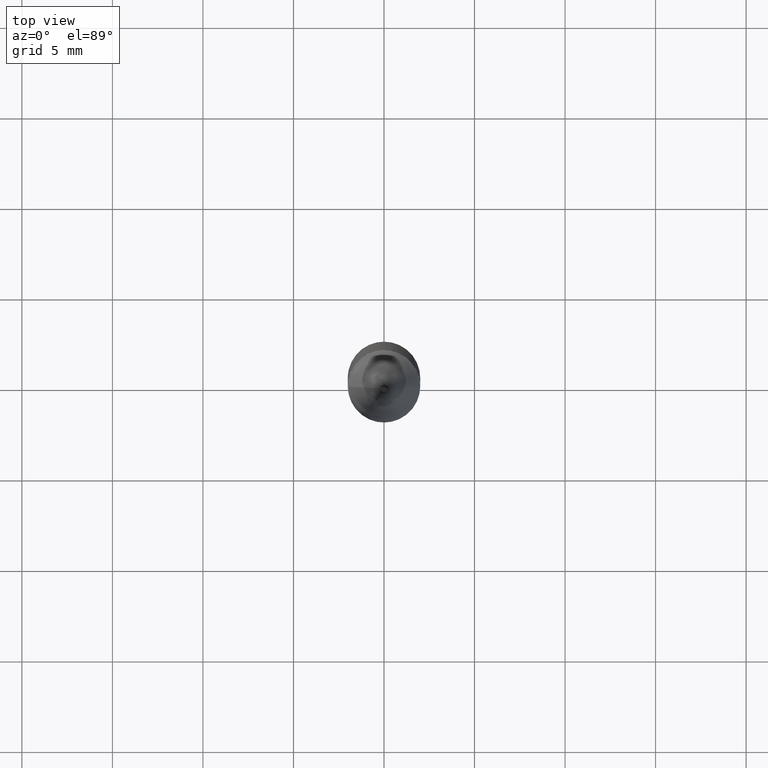
[diagram: clean part render]
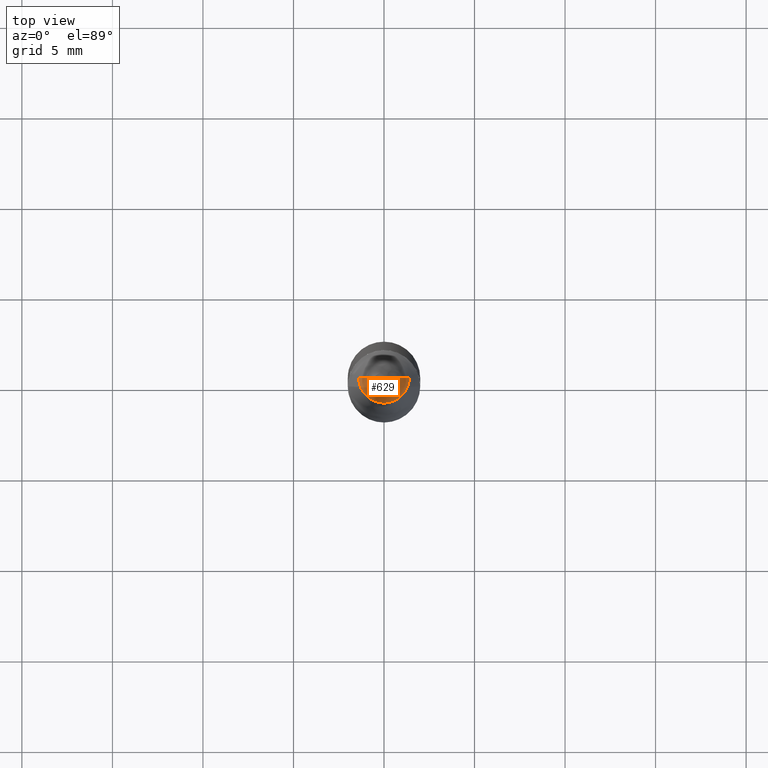
[diagram: same view with one face highlighted and labeled with its STEP entity id]
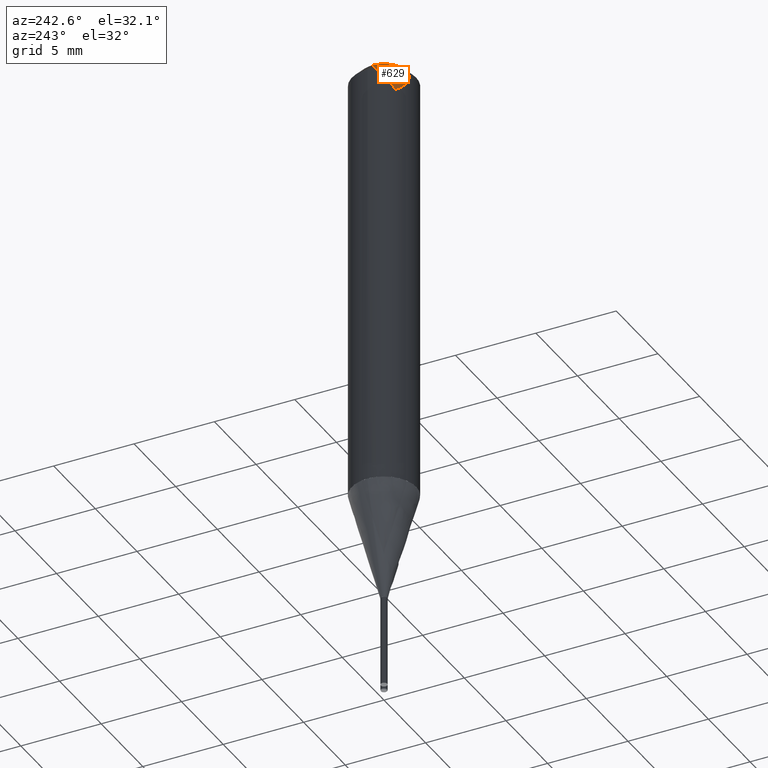
[diagram: same view with one face highlighted and labeled with its STEP entity id]
A machine part, top view. The second image highlights one B-rep face of the part: STEP entity #629.
A second angle (auxiliary view) of the same face is appended — the face is thin or edge-on in the first view.
In plain terms, the highlighted face is a freeform B-spline surface patch.
Its self-contained STEP definition (entity closure, byte-faithful):
#235=CARTESIAN_POINT('',(1.4,0.0,27.282));
#239=CARTESIAN_POINT('',(-1.4,0.0,27.282));
#240=CARTESIAN_POINT('',(0.0,0.0,27.282));
#250=CARTESIAN_POINT('',(-1.4,-1.4,27.282));
#251=CARTESIAN_POINT('',(0.0,-1.4,27.282));
#252=CARTESIAN_POINT('',(1.4,-1.4,27.282));
#614=(
BOUNDED_SURFACE()
B_SPLINE_SURFACE(1,2,(
(#239,#250,#251,#252,#235),
(#240,#240,#240,#240,#240)
), .UNSPECIFIED.,.F.,.F.,.F.)
B_SPLINE_SURFACE_WITH_KNOTS((2,2),(3,2,3),(
0.0,1.0),(
0.0,0.5,1.0), .UNSPECIFIED.)
GEOMETRIC_REPRESENTATION_ITEM()
RATIONAL_B_SPLINE_SURFACE(((1.0,0.707106781187,1.0,0.707106781187,1.0),
(1.0,0.707106781187,1.0,0.707106781187,1.0)
))
REPRESENTATION_ITEM('')
SURFACE()
);
#615=(
BOUNDED_CURVE()
B_SPLINE_CURVE(1,(#240,#235),.UNSPECIFIED.,.F.,.F.)
B_SPLINE_CURVE_WITH_KNOTS((2,2),
(0.0,1.0),.UNSPECIFIED.)
CURVE()
GEOMETRIC_REPRESENTATION_ITEM()
RATIONAL_B_SPLINE_CURVE((1.0,1.0))
REPRESENTATION_ITEM('')
);
#616=(
BOUNDED_CURVE()
B_SPLINE_CURVE(2,(#235,#252,#251,#250,#239),.UNSPECIFIED.,.F.,.F.)
B_SPLINE_CURVE_WITH_KNOTS((3,2,3),
(0.0,0.5,1.0),.UNSPECIFIED.)
CURVE()
GEOMETRIC_REPRESENTATION_ITEM()
RATIONAL_B_SPLINE_CURVE((1.0,0.707106781187,1.0,0.707106781187,1.0))
REPRESENTATION_ITEM('')
);
#617=(
BOUNDED_CURVE()
B_SPLINE_CURVE(1,(#239,#240),.UNSPECIFIED.,.F.,.F.)
B_SPLINE_CURVE_WITH_KNOTS((2,2),
(0.0,1.0),.UNSPECIFIED.)
CURVE()
GEOMETRIC_REPRESENTATION_ITEM()
RATIONAL_B_SPLINE_CURVE((1.0,1.0))
REPRESENTATION_ITEM('')
);
#618=VERTEX_POINT('',#235);
#619=VERTEX_POINT('',#239);
#620=VERTEX_POINT('',#240);
#621=EDGE_CURVE('',#620,#618,#615,.T.);
#622=EDGE_CURVE('',#618,#619,#616,.T.);
#623=EDGE_CURVE('',#619,#620,#617,.T.);
#624=ORIENTED_EDGE('',*,*,#621,.T.);
#625=ORIENTED_EDGE('',*,*,#622,.T.);
#626=ORIENTED_EDGE('',*,*,#623,.T.);
#627=EDGE_LOOP('',(#624,#625,#626));
#628=FACE_OUTER_BOUND('',#627,.T.);
#629=ADVANCED_FACE('',(#628),#614,.T.);